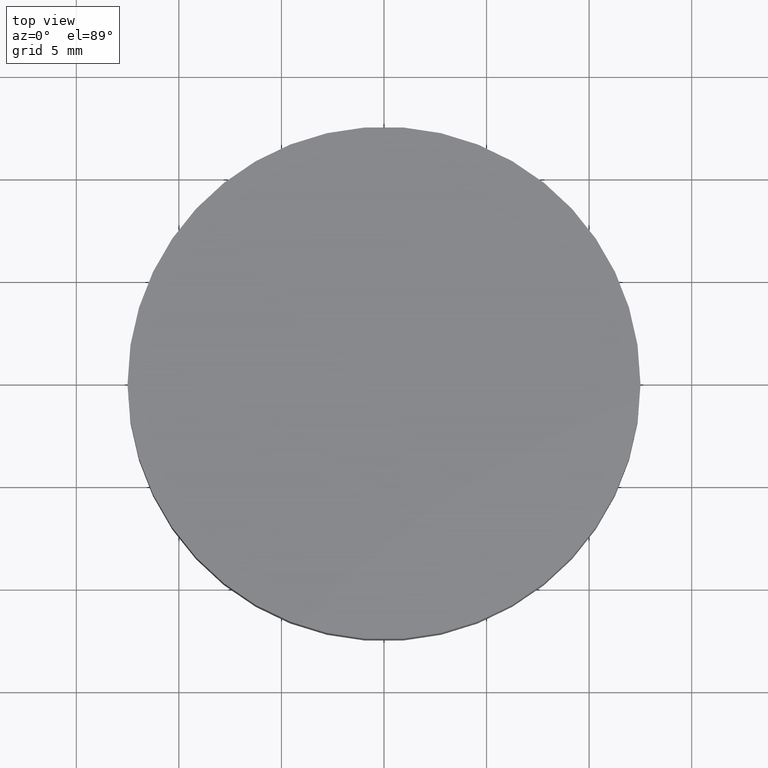
[diagram: clean part render]
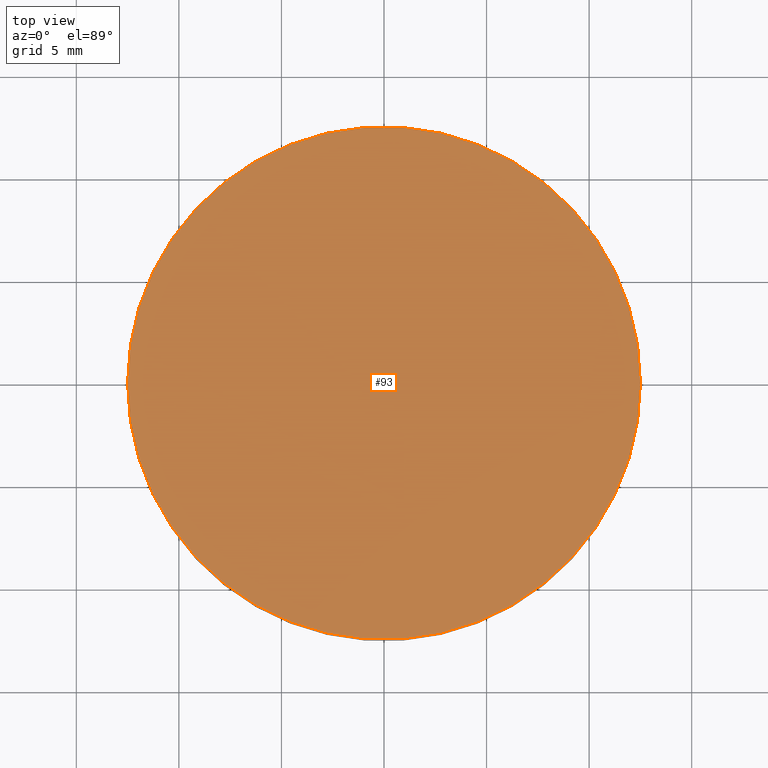
[diagram: same view with one face highlighted and labeled with its STEP entity id]
A machine part, top view. The second image highlights one B-rep face of the part: STEP entity #93.
In plain terms, the highlighted planar face has unit normal (0, 0, 1).
Its self-contained STEP definition (entity closure, byte-faithful):
#3 = ORIENTED_EDGE ( 'NONE', *, *, #74, .T. ) ;
#4 = AXIS2_PLACEMENT_3D ( 'NONE', #69, #126, #56 ) ;
#17 = CIRCLE ( 'NONE', #4, 12.50000000000000000 ) ;
#21 = DIRECTION ( 'NONE',  ( 1.000000000000000000, 0.0000000000000000000, -0.0000000000000000000 ) ) ;
#25 = CARTESIAN_POINT ( 'NONE',  ( -12.50000000000000000, 0.0000000000000000000, 5.000000000000000000 ) ) ;
#26 = EDGE_LOOP ( 'NONE', ( #120, #3 ) ) ;
#37 = VERTEX_POINT ( 'NONE', #25 ) ;
#42 = AXIS2_PLACEMENT_3D ( 'NONE', #44, #57, #21 ) ;
#44 = CARTESIAN_POINT ( 'NONE',  ( 0.0000000000000000000, 0.0000000000000000000, 5.000000000000000000 ) ) ;
#45 = DIRECTION ( 'NONE',  ( 0.0000000000000000000, 0.0000000000000000000, 1.000000000000000000 ) ) ;
#53 = FACE_OUTER_BOUND ( 'NONE', #26, .T. ) ;
#56 = DIRECTION ( 'NONE',  ( 1.000000000000000000, 0.0000000000000000000, 0.0000000000000000000 ) ) ;
#57 = DIRECTION ( 'NONE',  ( 0.0000000000000000000, 0.0000000000000000000, 1.000000000000000000 ) ) ;
#69 = CARTESIAN_POINT ( 'NONE',  ( 0.0000000000000000000, 0.0000000000000000000, 5.000000000000000000 ) ) ;
#74 = EDGE_CURVE ( 'NONE', #108, #37, #130, .T. ) ;
#82 = EDGE_CURVE ( 'NONE', #37, #108, #17, .T. ) ;
#93 = ADVANCED_FACE ( 'NONE', ( #53 ), #96, .T. ) ;
#96 = PLANE ( 'NONE',  #42 ) ;
#105 = CARTESIAN_POINT ( 'NONE',  ( 12.50000000000000000, 1.530808498934191500E-015, 5.000000000000000000 ) ) ;
#106 = DIRECTION ( 'NONE',  ( 1.000000000000000000, 0.0000000000000000000, 0.0000000000000000000 ) ) ;
#108 = VERTEX_POINT ( 'NONE', #105 ) ;
#119 = CARTESIAN_POINT ( 'NONE',  ( 0.0000000000000000000, 0.0000000000000000000, 5.000000000000000000 ) ) ;
#120 = ORIENTED_EDGE ( 'NONE', *, *, #82, .T. ) ;
#126 = DIRECTION ( 'NONE',  ( 0.0000000000000000000, 0.0000000000000000000, 1.000000000000000000 ) ) ;
#127 = AXIS2_PLACEMENT_3D ( 'NONE', #119, #45, #106 ) ;
#130 = CIRCLE ( 'NONE', #127, 12.50000000000000000 ) ;